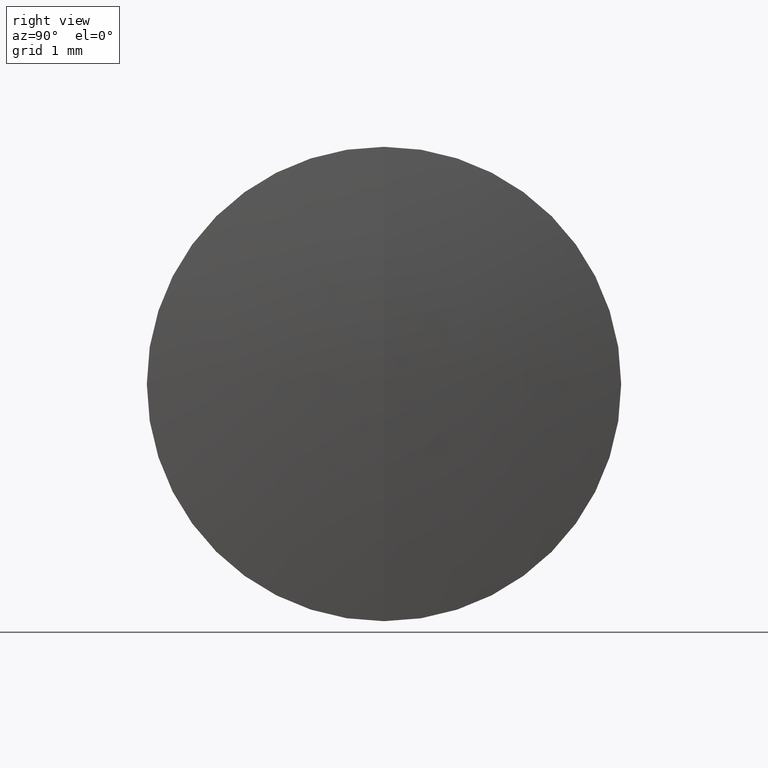
[diagram: clean part render]
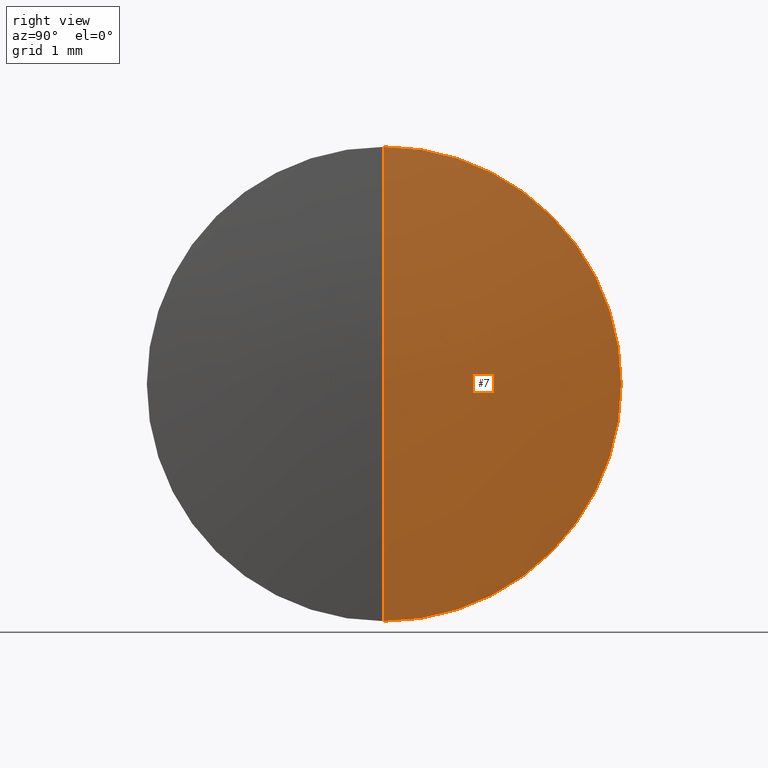
[diagram: same view with one face highlighted and labeled with its STEP entity id]
A machine part, right view. The second image highlights one B-rep face of the part: STEP entity #7.
In plain terms, the highlighted spherical surface has radius 29 mm.
Its self-contained STEP definition (entity closure, byte-faithful):
#2 = DIRECTION ( 'NONE',  ( 0.0000000000000000000, 1.000000000000000000, 0.0000000000000000000 ) ) ;
#7 = ADVANCED_FACE ( 'NONE', ( #214 ), #222, .T. ) ;
#24 = CARTESIAN_POINT ( 'NONE',  ( 234.8807127546714100, 0.0000000000000000000, 0.0000000000000000000 ) ) ;
#42 = DIRECTION ( 'NONE',  ( -0.0000000000000000000, 1.000000000000000000, 1.224646799147353200E-016 ) ) ;
#57 = AXIS2_PLACEMENT_3D ( 'NONE', #110, #86, #319 ) ;
#81 = DIRECTION ( 'NONE',  ( 0.0000000000000000000, -1.000000000000000000, 0.0000000000000000000 ) ) ;
#86 = DIRECTION ( 'NONE',  ( -1.000000000000000000, -0.0000000000000000000, -0.0000000000000000000 ) ) ;
#88 = AXIS2_PLACEMENT_3D ( 'NONE', #138, #2, #232 ) ;
#104 = DIRECTION ( 'NONE',  ( 0.0000000000000000000, 0.0000000000000000000, -1.000000000000000000 ) ) ;
#110 = CARTESIAN_POINT ( 'NONE',  ( 263.7063849064184100, 0.0000000000000000000, 0.0000000000000000000 ) ) ;
#136 = CARTESIAN_POINT ( 'NONE',  ( 263.8807127546714400, 0.0000000000000000000, 1.775737858763664800E-015 ) ) ;
#138 = CARTESIAN_POINT ( 'NONE',  ( 234.8807127546714100, 0.0000000000000000000, 0.0000000000000000000 ) ) ;
#164 = EDGE_CURVE ( 'NONE', #261, #323, #241, .T. ) ;
#177 = AXIS2_PLACEMENT_3D ( 'NONE', #237, #42, #211 ) ;
#183 = EDGE_CURVE ( 'NONE', #323, #342, #291, .T. ) ;
#211 = DIRECTION ( 'NONE',  ( 0.0000000000000000000, -1.224646799147353200E-016, 1.000000000000000000 ) ) ;
#214 = FACE_OUTER_BOUND ( 'NONE', #321, .T. ) ;
#219 = ORIENTED_EDGE ( 'NONE', *, *, #254, .T. ) ;
#222 = SPHERICAL_SURFACE ( 'NONE', #88, 29.00000000000004300 ) ;
#232 = DIRECTION ( 'NONE',  ( 0.0000000000000000000, 0.0000000000000000000, 1.000000000000000000 ) ) ;
#237 = CARTESIAN_POINT ( 'NONE',  ( 234.8807127546714100, 0.0000000000000000000, 0.0000000000000000000 ) ) ;
#241 = CIRCLE ( 'NONE', #320, 29.00000000000004300 ) ;
#249 = ORIENTED_EDGE ( 'NONE', *, *, #164, .F. ) ;
#254 = EDGE_CURVE ( 'NONE', #261, #342, #347, .T. ) ;
#256 = CARTESIAN_POINT ( 'NONE',  ( 263.7063849064184100, 0.0000000000000000000, 3.175000000000000700 ) ) ;
#261 = VERTEX_POINT ( 'NONE', #136 ) ;
#291 = CIRCLE ( 'NONE', #57, 3.175000000000000700 ) ;
#298 = ORIENTED_EDGE ( 'NONE', *, *, #183, .F. ) ;
#319 = DIRECTION ( 'NONE',  ( 0.0000000000000000000, 0.0000000000000000000, 1.000000000000000000 ) ) ;
#320 = AXIS2_PLACEMENT_3D ( 'NONE', #24, #81, #104 ) ;
#321 = EDGE_LOOP ( 'NONE', ( #249, #219, #298 ) ) ;
#323 = VERTEX_POINT ( 'NONE', #256 ) ;
#333 = CARTESIAN_POINT ( 'NONE',  ( 263.7063849064184100, 3.888253587292847100E-016, -3.175000000000000700 ) ) ;
#342 = VERTEX_POINT ( 'NONE', #333 ) ;
#347 = CIRCLE ( 'NONE', #177, 29.00000000000004300 ) ;